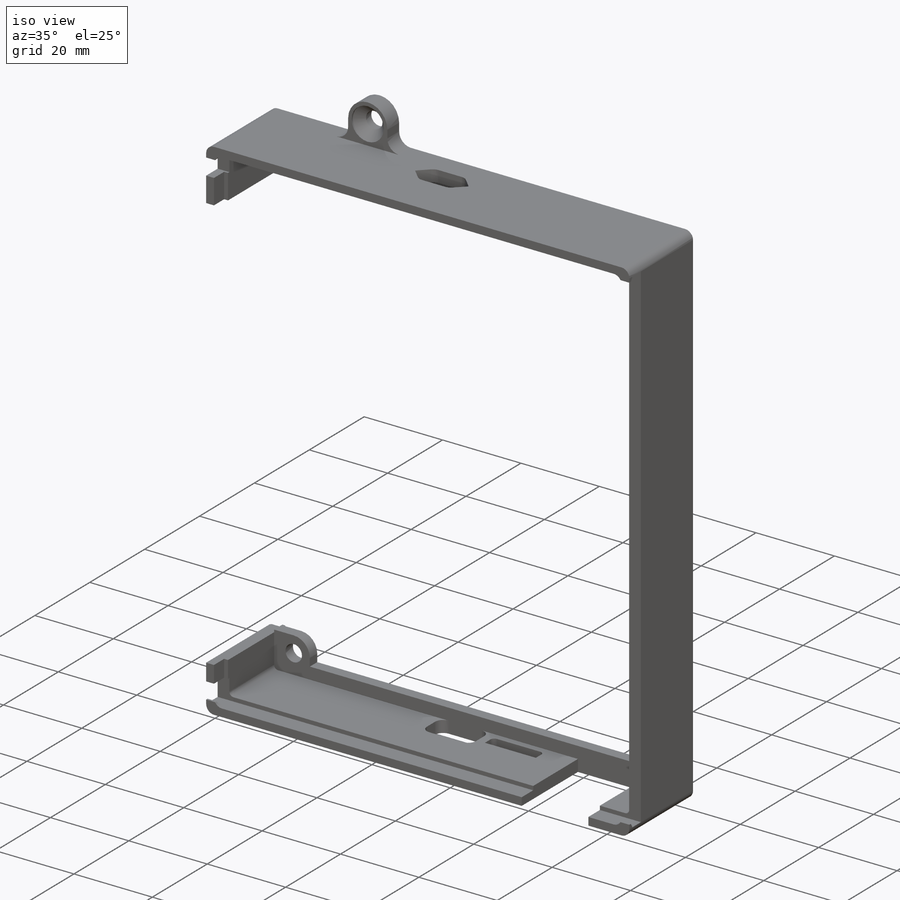
[diagram: iso view]
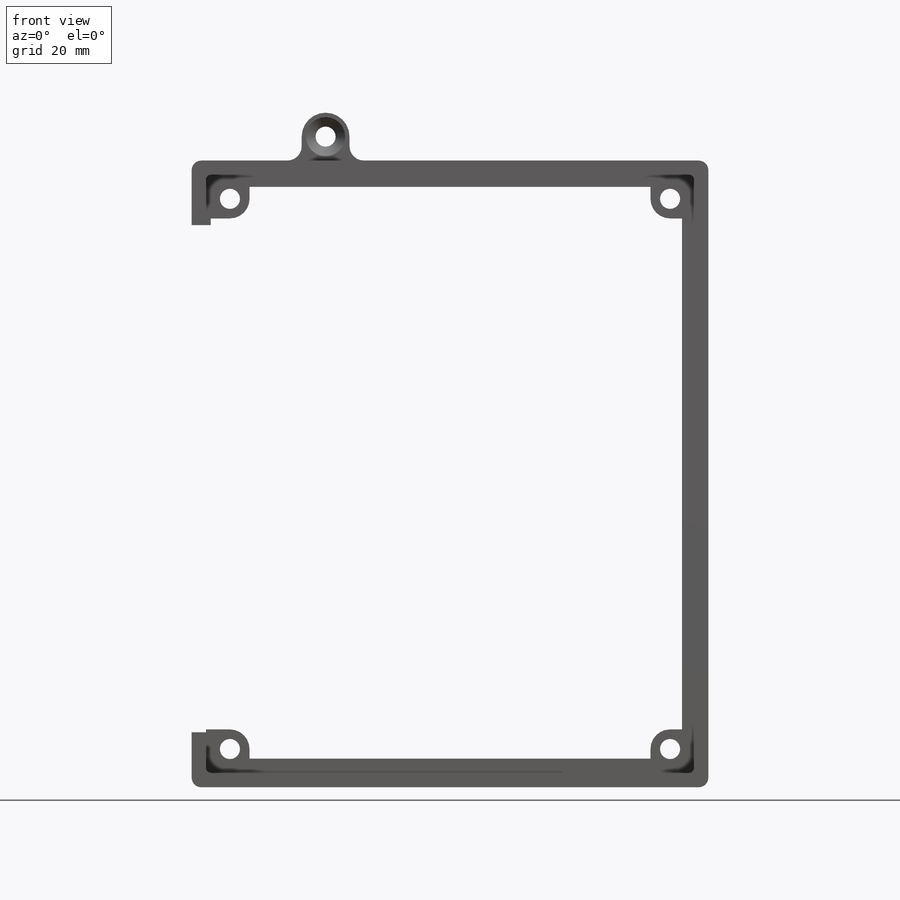
[diagram: front view]
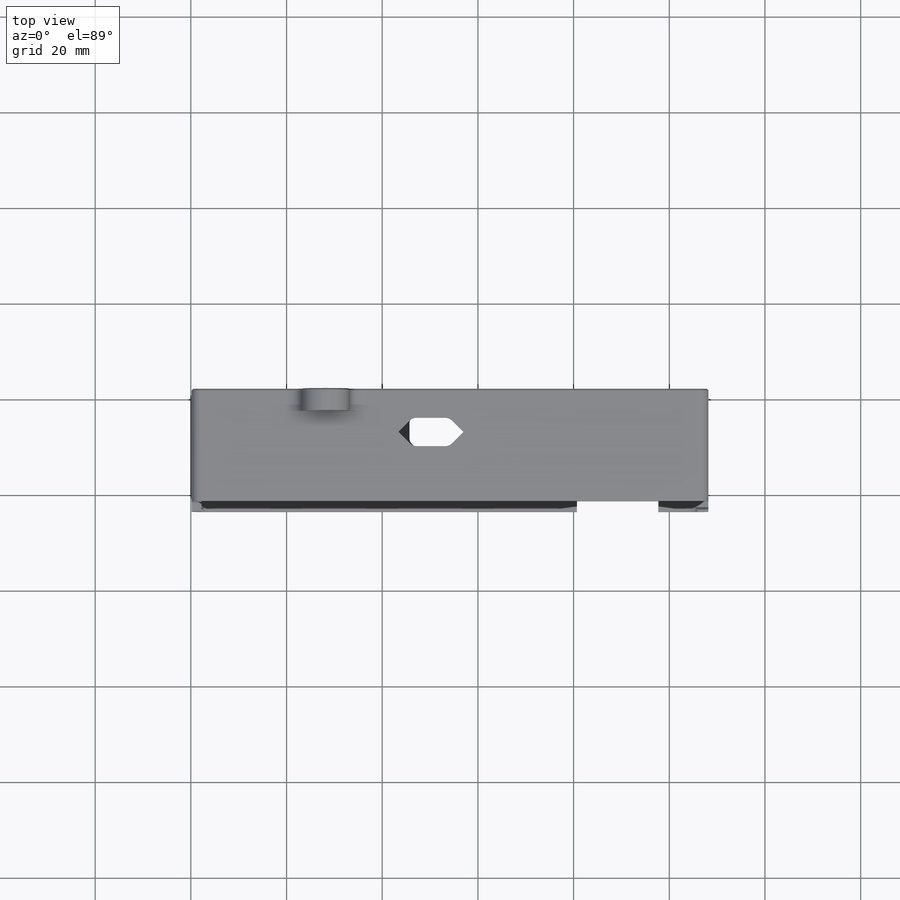
[diagram: top view]
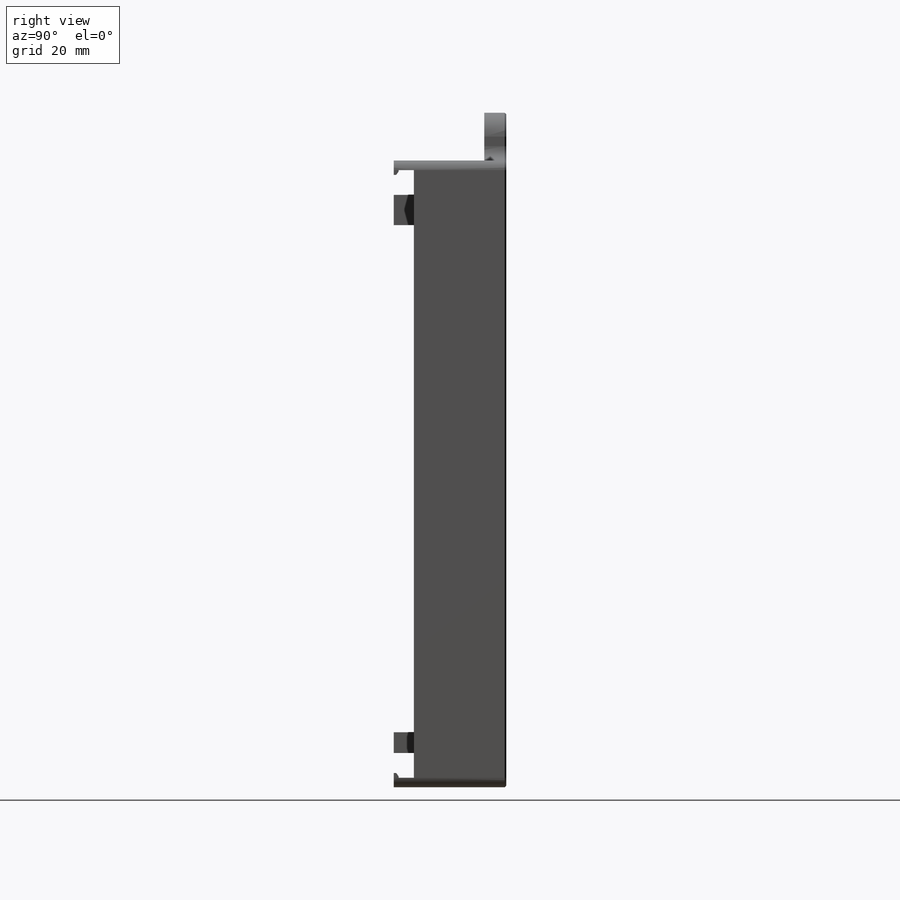
[diagram: right view]
SOLIDWORKS PART (.sldprt)
format: sldprt  version: not decoded by parser v0  size: 930,816 bytes
history: native  units: mm
features: sketch x12, cut_extrude x10, fillet x4, chamfer x4, material x1, extrude x1 (+12 scaffold rows collapsed)
feature tree (44):
  scaffold x12  (default folders/planes/origin — collapsed)
  material  "Custom Plastic"
  sketch  "Model"
  sketch  "Sketch2"  dims[c1.D2=~4.407517mm c1.D3=~4.407517mm c1.D4=4.2mm c2.D2=20.0mm c2.D3=10.0mm c3.D2=20.0mm c3.D3=10.0mm c3.D1=4.0mm c4.D3=20.0mm c4.D1=2.5mm]
  extrude  "Boss-Extrude1"  Depth=23.5mm
  fillet  "Fillet1"  Radius=2mm
  sketch  "Sketch5"  dims[D2=1.0mm D1=3.0mm D3=17.0mm]
  cut_extrude  "Cut-Extrude3"  Depth=3mm
  sketch  "Sketch6"  dims[c1.D3=5.0mm c1.D1=20.0mm c1.D2=10.0mm c2.D3=~1.245749mm c2.D4=~11.999106mm c3.D3=2.0mm c3.D4=18.0mm c3.D5=48.0mm c3.D6=3.0mm c3.D7=15.0mm c3.D8=105.0mm c3.D2=4.0mm c4.D4=42.0mm c4.D5=52.0mm c4.D6=42.0mm]
  cut_extrude  "Cut-Extrude4"  [1 undecoded]
  sketch  "Sketch7"  dims[c1.D1=44.0mm c1.D2=13.0mm c1.D3=12.5mm c1.D4=57.0mm c2.D1=45.0mm c2.D4=57.0mm c2.D5=1.6mm c2.D6=3.0mm c2.D7=7.0mm c3.D4=59.5mm c3.D8=6.0mm c3.D5=1.6mm]
  cut_extrude  "Cut-Extrude5"  Depth=3mm
  sketch  "Sketch8"  dims[D1=2.0mm D2=2.0mm]
  cut_extrude  "Cut-Extrude6"  Depth=3.7mm
  fillet  "Fillet3"  Radius=3mm
  chamfer  "Chamfer3"  Distance=0.3mm Angle=45deg
  fillet  "Fillet2"  Radius=2mm
  sketch  "Sketch9"  dims[D1=2.0mm D2=6.0mm D3=10.0mm D4=45.0mm D5=3.0mm]
  cut_extrude  "Cut-Extrude7"  [1 undecoded]
  sketch  "Sketch10"
  cut_extrude  "Cut-Extrude8"  Depth=1.6mm
  sketch  "Sketch11"  dims[D1=5.5mm D2=3.5mm]
  cut_extrude  "Cut-Extrude9"  [1 undecoded]
  sketch  "Sketch12"  dims[D1=8.2mm]
  cut_extrude  "Cut-Extrude10"  Depth=0.4mm
  chamfer  "Chamfer4"  Distance=2mm Angle=45deg
  sketch  "Sketch13"  dims[D1=1.0mm D2=3.2mm D3=1.0mm]
  cut_extrude  "Cut-Extrude11"  [1 undecoded]
  sketch  "Sketch14"  dims[D1=5.2mm D2=0.7mm]
  cut_extrude  "Cut-Extrude12"  [1 undecoded]
  chamfer  "Chamfer5"  Distance=0.7mm
  fillet  "Fillet4"  Radius=1mm
  chamfer  "Chamfer6"  Distance=0.5mm
decode coverage: 24 of 31 modeling features carry decoded parameters
note: ~ marks probable driven/reference dimensions
note: 5 parameter values undecoded
summary: no parameter record found for 5 features
note: suppression state not decoded; provenance and decode notes live in map.json
